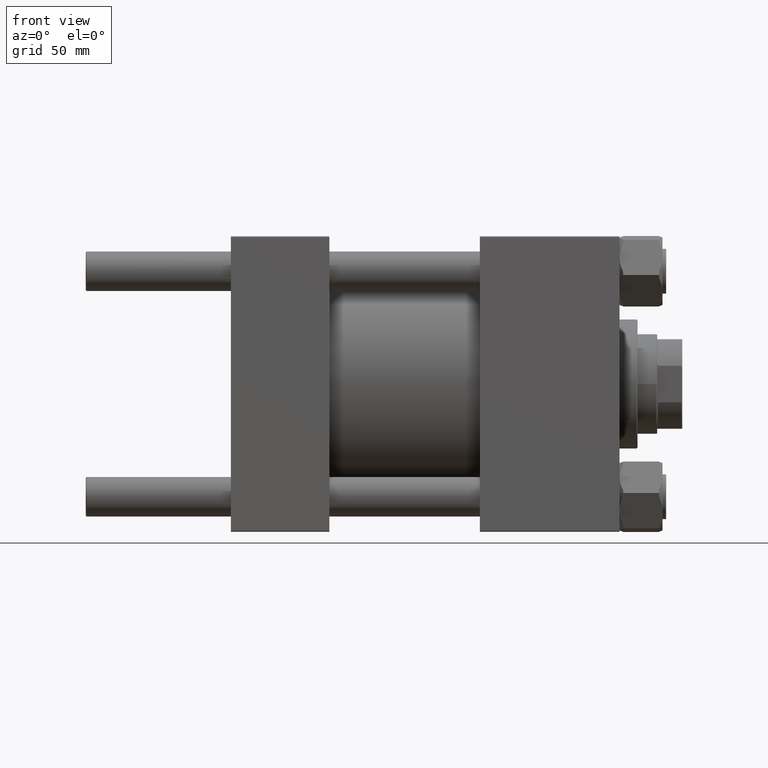
[diagram: clean part render]
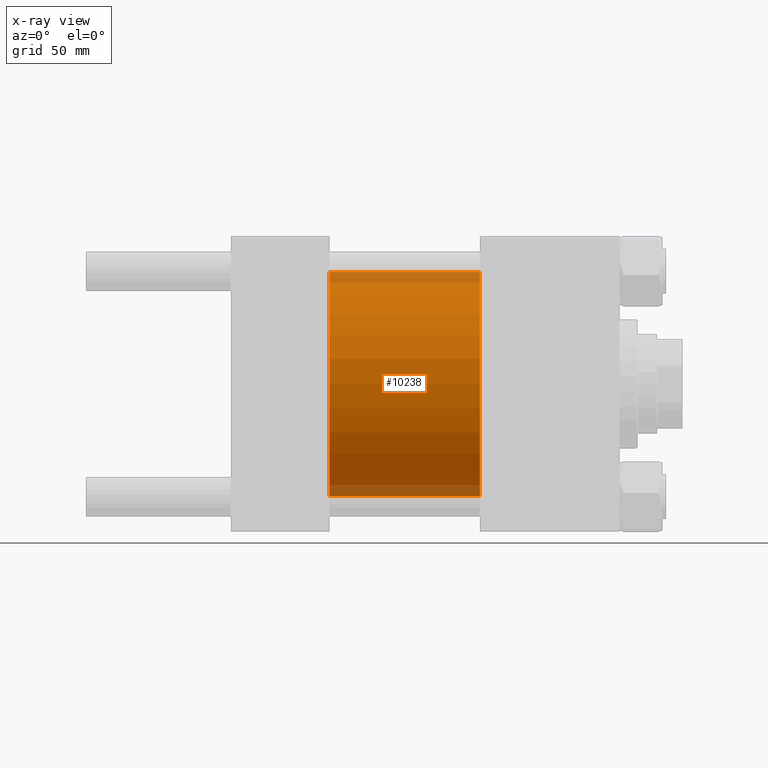
[diagram: x-ray — body ghosted, one internal face saturated and labeled with its STEP entity id]
A machine part, front view, then the same camera in x-ray: the body is ghosted and one INTERNAL B-rep face — a face not visible from any outside direction — is saturated and labeled: STEP entity #10238.
In plain terms, the highlighted cylindrical surface (partial cylindrical patch) has radius 62.5 mm, axis along (-1, -0, -0).
Its self-contained STEP definition (entity closure, byte-faithful):
#3424 = CARTESIAN_POINT ( 'NONE',  ( 139.0000000000000000, 7.654042494670956226E-15, -62.50000000000000000 ) ) ;
#4056 = VECTOR ( 'NONE', #14478, 1000.000000000000000 ) ;
#4199 = DIRECTION ( 'NONE',  ( 0.000000000000000000, 0.000000000000000000, 1.000000000000000000 ) ) ;
#6775 = CARTESIAN_POINT ( 'NONE',  ( 139.0000000000000000, 0.000000000000000000, 62.50000000000000000 ) ) ;
#7101 = VERTEX_POINT ( 'NONE', #3424 ) ;
#7278 = LINE ( 'NONE', #6775, #31968 ) ;
#7702 = EDGE_CURVE ( 'NONE', #7101, #35583, #10907, .T. ) ;
#7776 = FACE_OUTER_BOUND ( 'NONE', #16440, .T. ) ;
#9670 = VERTEX_POINT ( 'NONE', #25210 ) ;
#10238 = ADVANCED_FACE ( 'NONE', ( #7776 ), #31732, .F. ) ;
#10907 = LINE ( 'NONE', #22118, #4056 ) ;
#11378 = ORIENTED_EDGE ( 'NONE', *, *, #18011, .T. ) ;
#12866 = CARTESIAN_POINT ( 'NONE',  ( 139.0000000000000000, 0.000000000000000000, 0.000000000000000000 ) ) ;
#14478 = DIRECTION ( 'NONE',  ( -1.000000000000000000, -0.000000000000000000, -0.000000000000000000 ) ) ;
#16440 = EDGE_LOOP ( 'NONE', ( #11378, #21201, #30437, #42697 ) ) ;
#17036 = VERTEX_POINT ( 'NONE', #39478 ) ;
#18011 = EDGE_CURVE ( 'NONE', #17036, #7101, #18112, .T. ) ;
#18112 = CIRCLE ( 'NONE', #22175, 62.50000000000000000 ) ;
#21201 = ORIENTED_EDGE ( 'NONE', *, *, #7702, .T. ) ;
#22118 = CARTESIAN_POINT ( 'NONE',  ( 139.0000000000000000, 7.654042494670956226E-15, -62.50000000000000000 ) ) ;
#22175 = AXIS2_PLACEMENT_3D ( 'NONE', #31724, #27646, #40160 ) ;
#22313 = DIRECTION ( 'NONE',  ( 0.000000000000000000, 0.000000000000000000, -1.000000000000000000 ) ) ;
#25132 = CARTESIAN_POINT ( 'NONE',  ( 55.00000000000000000, 0.000000000000000000, 0.000000000000000000 ) ) ;
#25210 = CARTESIAN_POINT ( 'NONE',  ( 55.00000000000000000, 0.000000000000000000, 62.50000000000000000 ) ) ;
#27646 = DIRECTION ( 'NONE',  ( 1.000000000000000000, 0.000000000000000000, 0.000000000000000000 ) ) ;
#30437 = ORIENTED_EDGE ( 'NONE', *, *, #32293, .F. ) ;
#31092 = CARTESIAN_POINT ( 'NONE',  ( 55.00000000000000000, 7.654042494670956226E-15, -62.50000000000000000 ) ) ;
#31724 = CARTESIAN_POINT ( 'NONE',  ( 139.0000000000000000, 0.000000000000000000, 0.000000000000000000 ) ) ;
#31732 = CYLINDRICAL_SURFACE ( 'NONE', #36580, 62.50000000000000000 ) ;
#31968 = VECTOR ( 'NONE', #45816, 1000.000000000000000 ) ;
#32293 = EDGE_CURVE ( 'NONE', #9670, #35583, #39015, .T. ) ;
#35583 = VERTEX_POINT ( 'NONE', #31092 ) ;
#36580 = AXIS2_PLACEMENT_3D ( 'NONE', #12866, #47305, #4199 ) ;
#39015 = CIRCLE ( 'NONE', #40664, 62.50000000000000000 ) ;
#39478 = CARTESIAN_POINT ( 'NONE',  ( 139.0000000000000000, 0.000000000000000000, 62.50000000000000000 ) ) ;
#40160 = DIRECTION ( 'NONE',  ( 0.000000000000000000, 0.000000000000000000, -1.000000000000000000 ) ) ;
#40664 = AXIS2_PLACEMENT_3D ( 'NONE', #25132, #49116, #22313 ) ;
#42697 = ORIENTED_EDGE ( 'NONE', *, *, #45497, .F. ) ;
#45497 = EDGE_CURVE ( 'NONE', #17036, #9670, #7278, .T. ) ;
#45816 = DIRECTION ( 'NONE',  ( -1.000000000000000000, -0.000000000000000000, -0.000000000000000000 ) ) ;
#47305 = DIRECTION ( 'NONE',  ( -1.000000000000000000, -0.000000000000000000, -0.000000000000000000 ) ) ;
#49116 = DIRECTION ( 'NONE',  ( 1.000000000000000000, 0.000000000000000000, 0.000000000000000000 ) ) ;